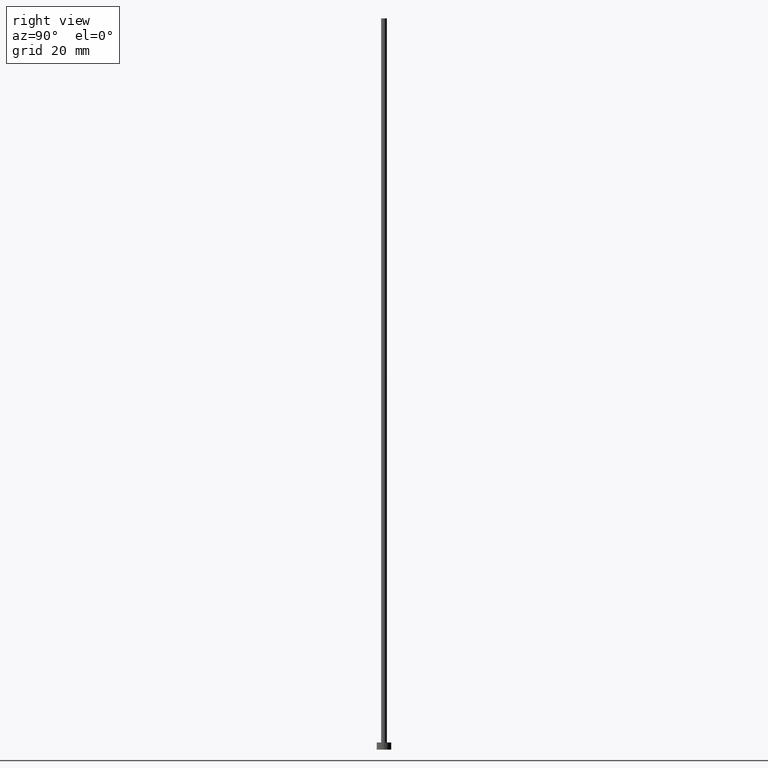
[diagram: clean part render]
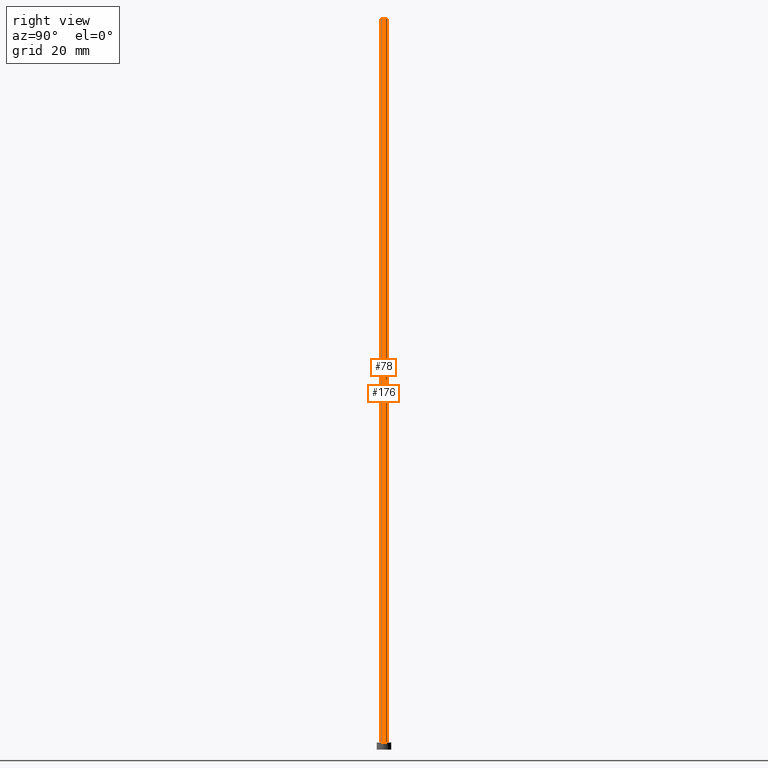
[diagram: same view with one multi-face feature highlighted, each face labeled with its STEP entity id]
A machine part, right view. The highlighted faces form ONE feature: a constant-radius fillet chain: 2 tangent blend faces with common blend radius 0.5 mm. The faces share edges in the B-rep.
Their STEP definitions:
[1] entity #176 (Cylinder):
#7 = EDGE_CURVE ( 'NONE', #156, #100, #15, .T. ) ;
#13 = CARTESIAN_POINT ( 'NONE',  ( -0.5000000000000000000, 0.000000000000000000, 125.0000000000000000 ) ) ;
#15 = CIRCLE ( 'NONE', #167, 0.5000000000000000000 ) ;
#20 = DIRECTION ( 'NONE',  ( -0.000000000000000000, -0.000000000000000000, -1.000000000000000000 ) ) ;
#24 = DIRECTION ( 'NONE',  ( 0.000000000000000000, 0.000000000000000000, 1.000000000000000000 ) ) ;
#25 = ORIENTED_EDGE ( 'NONE', *, *, #232, .F. ) ;
#28 = DIRECTION ( 'NONE',  ( -0.000000000000000000, -0.000000000000000000, -1.000000000000000000 ) ) ;
#38 = AXIS2_PLACEMENT_3D ( 'NONE', #71, #24, #233 ) ;
#47 = FACE_OUTER_BOUND ( 'NONE', #68, .T. ) ;
#50 = VERTEX_POINT ( 'NONE', #172 ) ;
#61 = LINE ( 'NONE', #147, #185 ) ;
#63 = LINE ( 'NONE', #150, #250 ) ;
#65 = CIRCLE ( 'NONE', #38, 0.5000000000000000000 ) ;
#68 = EDGE_LOOP ( 'NONE', ( #204, #135, #249, #25 ) ) ;
#71 = CARTESIAN_POINT ( 'NONE',  ( 0.000000000000000000, 0.000000000000000000, 1.199999999999999956 ) ) ;
#92 = DIRECTION ( 'NONE',  ( -0.000000000000000000, -0.000000000000000000, -1.000000000000000000 ) ) ;
#93 = CARTESIAN_POINT ( 'NONE',  ( 0.000000000000000000, 0.000000000000000000, 125.0000000000000000 ) ) ;
#94 = CYLINDRICAL_SURFACE ( 'NONE', #145, 0.5000000000000000000 ) ;
#98 = DIRECTION ( 'NONE',  ( 0.000000000000000000, 0.000000000000000000, 1.000000000000000000 ) ) ;
#100 = VERTEX_POINT ( 'NONE', #13 ) ;
#124 = EDGE_CURVE ( 'NONE', #50, #151, #65, .T. ) ;
#132 = EDGE_CURVE ( 'NONE', #156, #50, #61, .T. ) ;
#135 = ORIENTED_EDGE ( 'NONE', *, *, #132, .T. ) ;
#136 = DIRECTION ( 'NONE',  ( -1.000000000000000000, 0.000000000000000000, 0.000000000000000000 ) ) ;
#145 = AXIS2_PLACEMENT_3D ( 'NONE', #242, #92, #136 ) ;
#147 = CARTESIAN_POINT ( 'NONE',  ( 0.5000000000000000000, 6.123233995736766036E-17, 125.0000000000000000 ) ) ;
#150 = CARTESIAN_POINT ( 'NONE',  ( -0.5000000000000000000, 0.000000000000000000, 125.0000000000000000 ) ) ;
#151 = VERTEX_POINT ( 'NONE', #211 ) ;
#156 = VERTEX_POINT ( 'NONE', #239 ) ;
#167 = AXIS2_PLACEMENT_3D ( 'NONE', #93, #98, #170 ) ;
#170 = DIRECTION ( 'NONE',  ( 1.000000000000000000, 0.000000000000000000, 0.000000000000000000 ) ) ;
#172 = CARTESIAN_POINT ( 'NONE',  ( 0.5000000000000000000, 6.123233995736766036E-17, 1.199999999999999956 ) ) ;
#176 = ADVANCED_FACE ( 'NONE', ( #47 ), #94, .T. ) ;
#185 = VECTOR ( 'NONE', #28, 1000.000000000000000 ) ;
#204 = ORIENTED_EDGE ( 'NONE', *, *, #7, .F. ) ;
#211 = CARTESIAN_POINT ( 'NONE',  ( -0.5000000000000000000, 0.000000000000000000, 1.199999999999999956 ) ) ;
#232 = EDGE_CURVE ( 'NONE', #100, #151, #63, .T. ) ;
#233 = DIRECTION ( 'NONE',  ( 1.000000000000000000, 0.000000000000000000, 0.000000000000000000 ) ) ;
#239 = CARTESIAN_POINT ( 'NONE',  ( 0.5000000000000000000, 6.123233995736766036E-17, 125.0000000000000000 ) ) ;
#242 = CARTESIAN_POINT ( 'NONE',  ( 0.000000000000000000, 0.000000000000000000, 125.0000000000000000 ) ) ;
#249 = ORIENTED_EDGE ( 'NONE', *, *, #124, .T. ) ;
#250 = VECTOR ( 'NONE', #20, 1000.000000000000000 ) ;
[2] entity #78 (Cylinder):
#3 = CIRCLE ( 'NONE', #225, 0.5000000000000000000 ) ;
#13 = CARTESIAN_POINT ( 'NONE',  ( -0.5000000000000000000, 0.000000000000000000, 125.0000000000000000 ) ) ;
#20 = DIRECTION ( 'NONE',  ( -0.000000000000000000, -0.000000000000000000, -1.000000000000000000 ) ) ;
#28 = DIRECTION ( 'NONE',  ( -0.000000000000000000, -0.000000000000000000, -1.000000000000000000 ) ) ;
#31 = EDGE_LOOP ( 'NONE', ( #74, #171, #254, #253 ) ) ;
#45 = CARTESIAN_POINT ( 'NONE',  ( 0.000000000000000000, 0.000000000000000000, 1.199999999999999956 ) ) ;
#49 = EDGE_CURVE ( 'NONE', #100, #156, #102, .T. ) ;
#50 = VERTEX_POINT ( 'NONE', #172 ) ;
#61 = LINE ( 'NONE', #147, #185 ) ;
#63 = LINE ( 'NONE', #150, #250 ) ;
#74 = ORIENTED_EDGE ( 'NONE', *, *, #132, .F. ) ;
#78 = ADVANCED_FACE ( 'NONE', ( #157 ), #227, .T. ) ;
#95 = DIRECTION ( 'NONE',  ( -0.000000000000000000, -0.000000000000000000, -1.000000000000000000 ) ) ;
#100 = VERTEX_POINT ( 'NONE', #13 ) ;
#102 = CIRCLE ( 'NONE', #178, 0.5000000000000000000 ) ;
#132 = EDGE_CURVE ( 'NONE', #156, #50, #61, .T. ) ;
#144 = AXIS2_PLACEMENT_3D ( 'NONE', #183, #95, #243 ) ;
#147 = CARTESIAN_POINT ( 'NONE',  ( 0.5000000000000000000, 6.123233995736766036E-17, 125.0000000000000000 ) ) ;
#150 = CARTESIAN_POINT ( 'NONE',  ( -0.5000000000000000000, 0.000000000000000000, 125.0000000000000000 ) ) ;
#151 = VERTEX_POINT ( 'NONE', #211 ) ;
#156 = VERTEX_POINT ( 'NONE', #239 ) ;
#157 = FACE_OUTER_BOUND ( 'NONE', #31, .T. ) ;
#171 = ORIENTED_EDGE ( 'NONE', *, *, #49, .F. ) ;
#172 = CARTESIAN_POINT ( 'NONE',  ( 0.5000000000000000000, 6.123233995736766036E-17, 1.199999999999999956 ) ) ;
#178 = AXIS2_PLACEMENT_3D ( 'NONE', #222, #246, #186 ) ;
#182 = DIRECTION ( 'NONE',  ( 0.000000000000000000, 0.000000000000000000, 1.000000000000000000 ) ) ;
#183 = CARTESIAN_POINT ( 'NONE',  ( 0.000000000000000000, 0.000000000000000000, 125.0000000000000000 ) ) ;
#185 = VECTOR ( 'NONE', #28, 1000.000000000000000 ) ;
#186 = DIRECTION ( 'NONE',  ( 1.000000000000000000, 0.000000000000000000, 0.000000000000000000 ) ) ;
#188 = EDGE_CURVE ( 'NONE', #151, #50, #3, .T. ) ;
#211 = CARTESIAN_POINT ( 'NONE',  ( -0.5000000000000000000, 0.000000000000000000, 1.199999999999999956 ) ) ;
#214 = DIRECTION ( 'NONE',  ( 1.000000000000000000, 0.000000000000000000, 0.000000000000000000 ) ) ;
#222 = CARTESIAN_POINT ( 'NONE',  ( 0.000000000000000000, 0.000000000000000000, 125.0000000000000000 ) ) ;
#225 = AXIS2_PLACEMENT_3D ( 'NONE', #45, #182, #214 ) ;
#227 = CYLINDRICAL_SURFACE ( 'NONE', #144, 0.5000000000000000000 ) ;
#232 = EDGE_CURVE ( 'NONE', #100, #151, #63, .T. ) ;
#239 = CARTESIAN_POINT ( 'NONE',  ( 0.5000000000000000000, 6.123233995736766036E-17, 125.0000000000000000 ) ) ;
#243 = DIRECTION ( 'NONE',  ( -1.000000000000000000, 0.000000000000000000, 0.000000000000000000 ) ) ;
#246 = DIRECTION ( 'NONE',  ( 0.000000000000000000, 0.000000000000000000, 1.000000000000000000 ) ) ;
#250 = VECTOR ( 'NONE', #20, 1000.000000000000000 ) ;
#253 = ORIENTED_EDGE ( 'NONE', *, *, #188, .T. ) ;
#254 = ORIENTED_EDGE ( 'NONE', *, *, #232, .T. ) ;